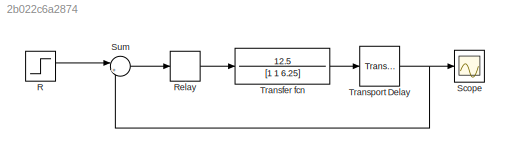
MODEL slx_2b022c6a2874
KIND model
CONFIG AbsTol = auto
CONFIG EnableMultiTasking = off
CONFIG FixedStep = auto
CONFIG MaxStep = auto
CONFIG MinStep = auto
CONFIG RelTol = 1e-3
CONFIG SampleTimeConstraint = Unconstrained
CONFIG SolverName = VariableStepAuto
CONFIG StartTime = 0.0
CONFIG StopTime = 30
BLOCK [Step] R
  After = 5
  SampleTime = 0
  Time = 0
BLOCK [Relay] Relay
  OffOutputValue = -2
  OffSwitchValue = -1
  OnOutputValue = 2
  OnSwitchValue = 1
BLOCK [Scope] Scope
  Floating = off
  NumInputPorts = 1
  ScopeSpecificationString = Simulink.scopes.TimeScopeBlockCfg('CurrentConfiguration', extmgr.ConfigurationSet(extmgr.Configuration('Core','General UI',true),extmgr.Configuration('Core','Source UI',true),extmgr.Configuration('Sources','WiredSimulink',true),extmgr.Configuration('Visuals','Time Domain',true,'SerializedDisplays',{struct('MinYLimReal','-0.74136','MaxYLimReal','6.6722','YLabelReal','','MinYLimMag','0.00000','MaxYL...<+1472ch>
BLOCK [Sum] Sum
  Inputs = |+-
  NameLocation = top
BLOCK [TransferFcn] Transfer fcn
  Denominator = [1 1 6.25]
  Numerator = 12.5
BLOCK [TransportDelay] Transport Delay
LINE R:1 -> Sum:1
LINE Relay:1 -> Transfer fcn:1
LINE Sum:1 -> Relay:1
LINE Transfer fcn:1 -> Transport Delay:1
NET Transport Delay:1 -> Scope:1, Sum:2
note: NET lines group one-source signal fan-out (src -> all destinations, sorted); 1:1 wires keep LINE
